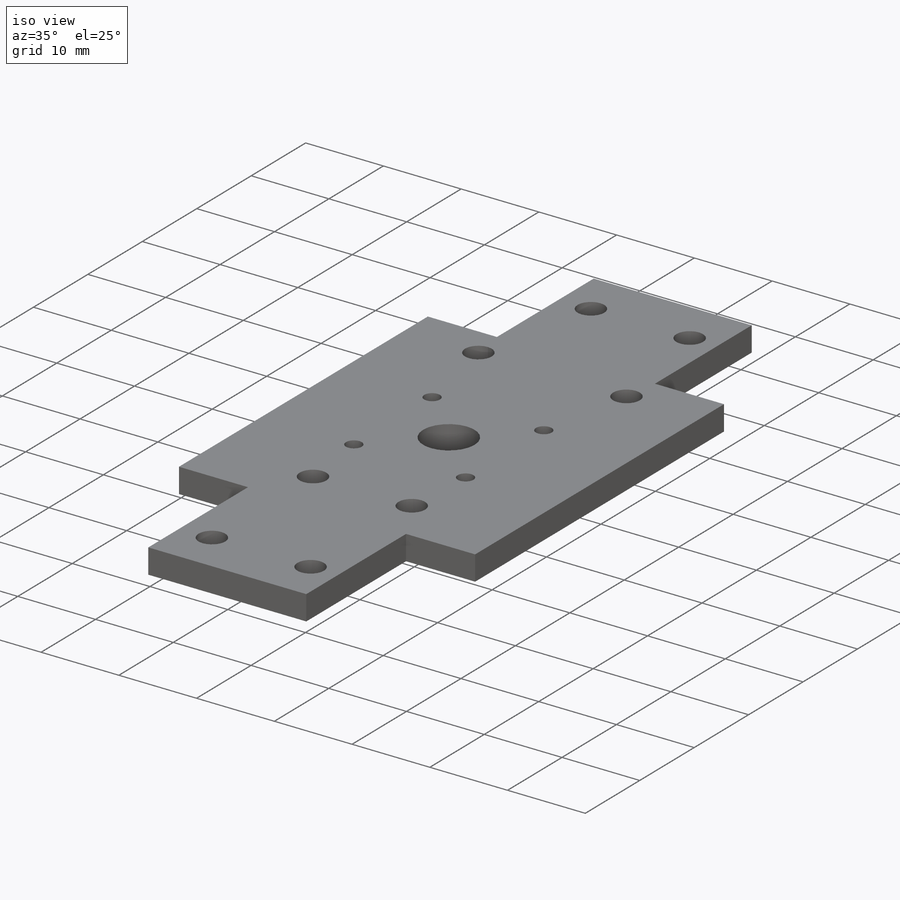
[diagram: iso view]
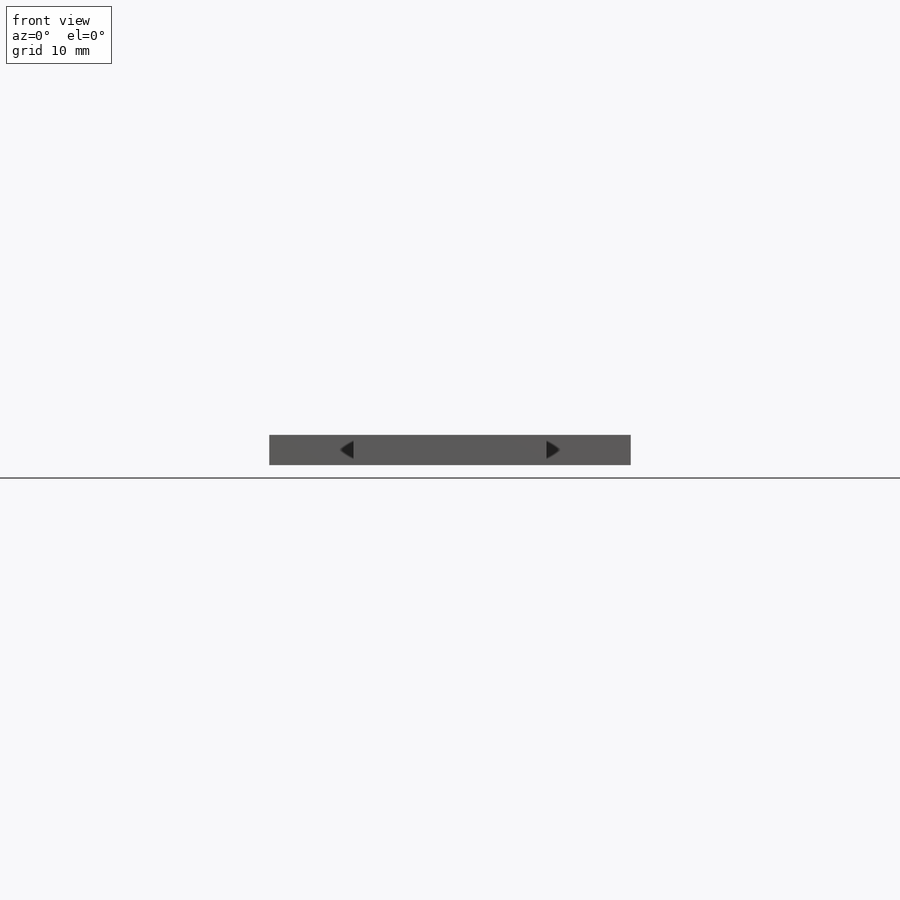
[diagram: front view]
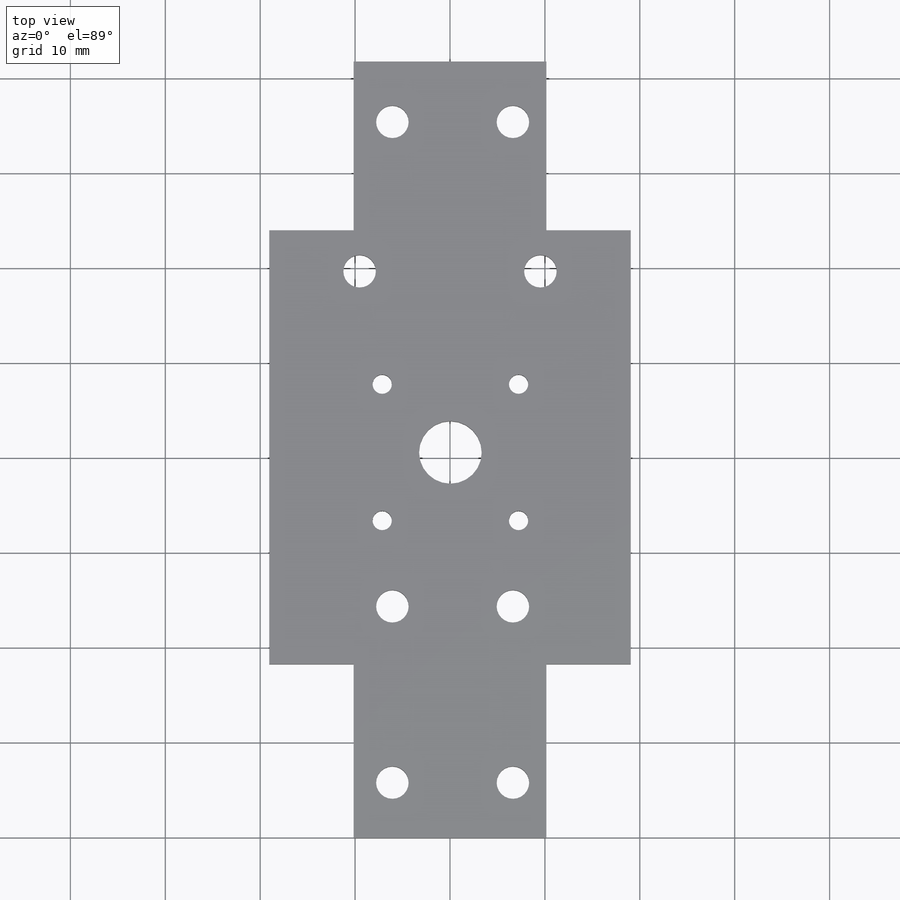
[diagram: top view]
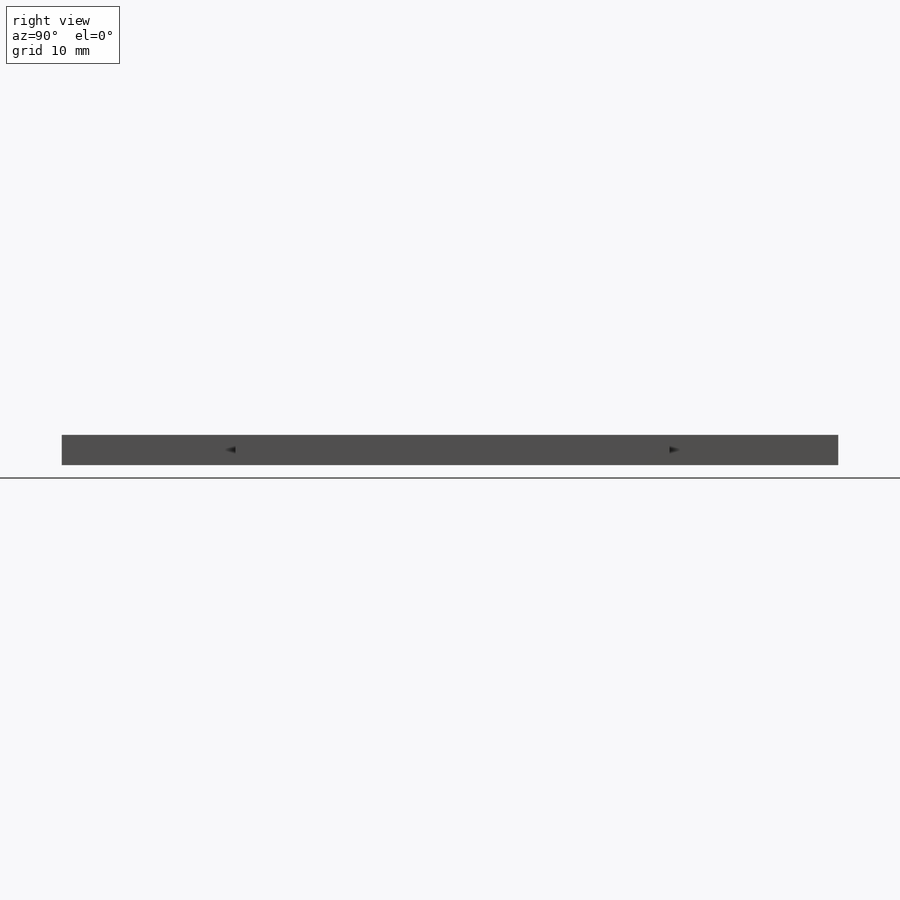
[diagram: right view]
SOLIDWORKS PART (.sldprt)
format: sldprt  version: not decoded by parser v0  size: 406,528 bytes
history: native  units: mm
features: sketch x6, cut_extrude x4, extrude x2, material x1, mirror x1 (+16 scaffold rows collapsed)
feature tree (30):
  scaffold x16  (default folders/planes/origin — collapsed)
  material  "Material <not specified>"
  sketch  "Sketch1"  dims[D1=63.5mm D2=38.1mm]
  extrude  "Boss-Extrude1"  Depth=3.175mm
  sketch  "Sketch2"  dims[c1.D3=~4.132889mm c1.D5=3.429mm c1.D6=3.048mm c1.D1=3.429mm c1.D2=3.429mm c1.D4=3.429mm c2.D1=3.429mm c2.D2=3.429mm c2.D3=3.429mm c2.D4=3.429mm c2.D5=3.429mm c2.D6=3.429mm c2.D8=3.429mm c2.D9=3.429mm c3.D1=7.62mm c3.D2=7.62mm c3.D3=5.08mm c3.D4=6.35mm c4.D3=12.7mm c4.D6=12.7mm c4.D4=51.054mm c4.D5=~24.015518mm c5.D6=6.35mm c5.D7=6.096mm]
  sketch  "Sketch3"  dims[c1.D1=6.604mm c1.D2=2.032mm c1.D3=2.032mm c1.D4=2.032mm c1.D5=2.032mm c1.D6=10.16mm c1.D7=10.16mm c1.D8=10.16mm c1.D9=10.16mm c2.D1=6.604mm c2.D2=2.032mm c2.D3=2.032mm c2.D4=2.032mm c2.D5=2.032mm c2.D8=6.604mm c2.D9=6.604mm c2.D6=10.16mm c2.D7=10.16mm c3.D8=10.16mm c3.D9=10.16mm]
  cut_extrude  "holes for servo mount"  [1 undecoded]
  cut_extrude  "holes for tilt servo bracket"  [1 undecoded]
  sketch  "Sketch4"  dims[c1.D1=~3.991411mm c1.D2=3.429mm c1.D3=3.429mm c1.D5=3.429mm c2.D1=19.05mm c2.D4=22.098mm c2.D6=5.715mm]
  cut_extrude  "holes for pillow bracket"  [1 undecoded]
  sketch  "Sketch5"  dims[D1=17.78mm D2=8.89mm]
  cut_extrude  "Cut-Extrude1"  [1 undecoded]
  mirror  "Mirror1"
  sketch  "Sketch10"  dims[c1.D3=6.604mm c1.D4=3.429mm c1.D5=3.429mm c1.D6=6.604mm c1.D1=10.16mm c1.D2=10.16mm c2.D3=40.64mm c2.D6=34.798mm]
  extrude  "Boss-Extrude3"  Depth=3.175mm
decode coverage: 8 of 13 modeling features carry decoded parameters
note: ~ marks probable driven/reference dimensions
note: 4 parameter values undecoded
summary: no parameter record found for 4 features
note: suppression state not decoded; provenance and decode notes live in map.json
